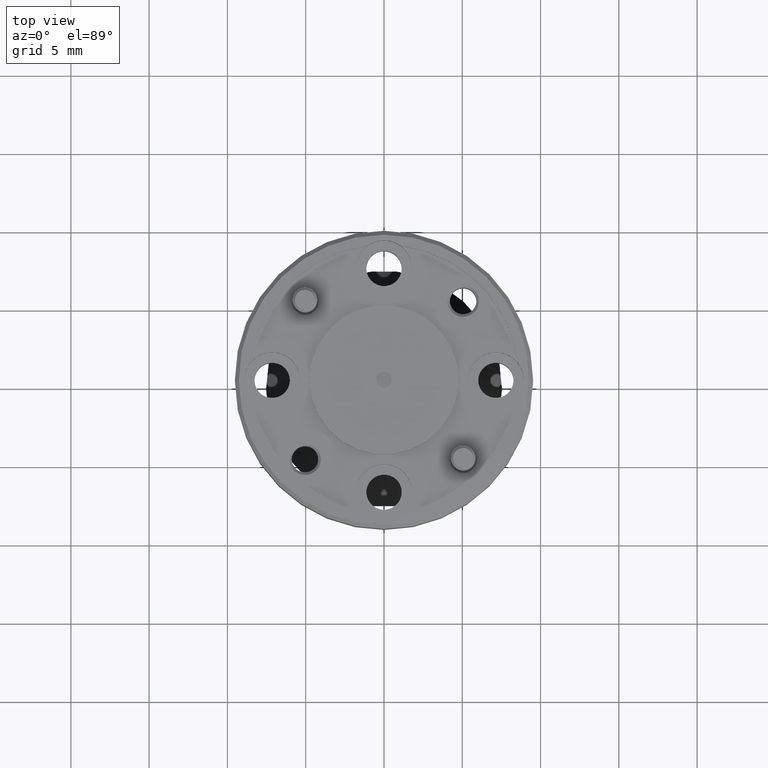
[diagram: clean part render]
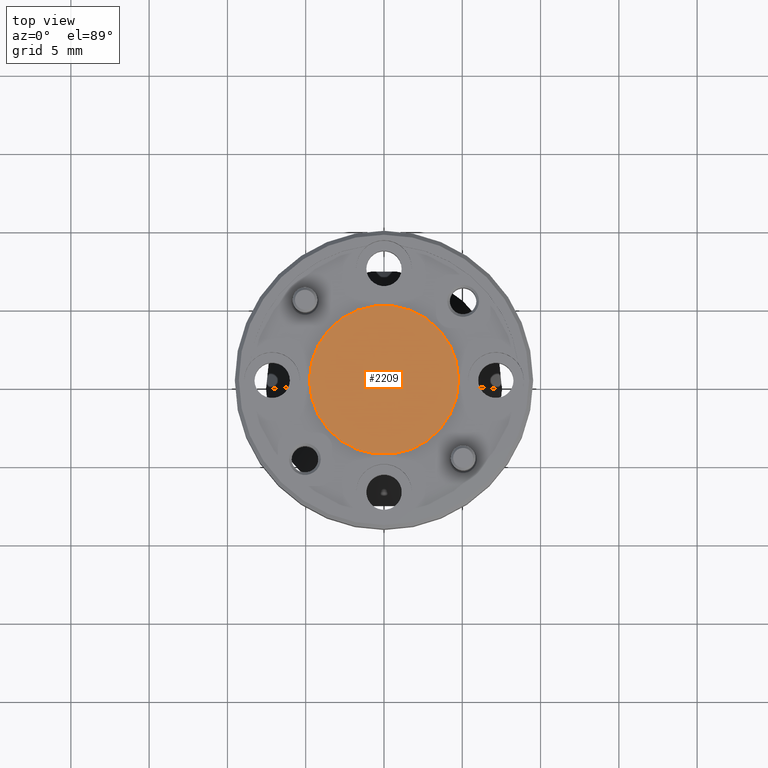
[diagram: same view with one face highlighted and labeled with its STEP entity id]
A machine part, top view. The second image highlights one B-rep face of the part: STEP entity #2209.
In plain terms, the highlighted planar face has unit normal (0, -0, 1).
Its self-contained STEP definition (entity closure, byte-faithful):
#66 = EDGE_CURVE ( 'NONE', #901, #195, #562, .T. ) ;
#71 = DIRECTION ( 'NONE',  ( 1.000000000000000000, 0.000000000000000000, 0.000000000000000000 ) ) ;
#80 = CARTESIAN_POINT ( 'NONE',  ( -0.1875000000000000278, 2.296212748401287726E-17, 0.000000000000000000 ) ) ;
#92 = DIRECTION ( 'NONE',  ( -0.000000000000000000, -0.000000000000000000, 1.000000000000000000 ) ) ;
#94 = DIRECTION ( 'NONE',  ( 0.000000000000000000, 0.000000000000000000, 1.000000000000000000 ) ) ;
#114 = CIRCLE ( 'NONE', #1445, 0.1875000000000000278 ) ;
#131 = EDGE_LOOP ( 'NONE', ( #2172, #277 ) ) ;
#195 = VERTEX_POINT ( 'NONE', #2294 ) ;
#277 = ORIENTED_EDGE ( 'NONE', *, *, #1954, .F. ) ;
#353 = DIRECTION ( 'NONE',  ( 0.000000000000000000, -0.000000000000000000, 1.000000000000000000 ) ) ;
#369 = VERTEX_POINT ( 'NONE', #2199 ) ;
#406 = EDGE_CURVE ( 'NONE', #524, #369, #1734, .T. ) ;
#433 = ORIENTED_EDGE ( 'NONE', *, *, #1660, .T. ) ;
#524 = VERTEX_POINT ( 'NONE', #80 ) ;
#548 = FACE_BOUND ( 'NONE', #131, .T. ) ;
#562 = CIRCLE ( 'NONE', #790, 0.01949999999999999997 ) ;
#579 = AXIS2_PLACEMENT_3D ( 'NONE', #769, #353, #2067 ) ;
#614 = ORIENTED_EDGE ( 'NONE', *, *, #406, .T. ) ;
#709 = AXIS2_PLACEMENT_3D ( 'NONE', #1157, #92, #1340 ) ;
#726 = PLANE ( 'NONE',  #579 ) ;
#759 = AXIS2_PLACEMENT_3D ( 'NONE', #1793, #1417, #868 ) ;
#769 = CARTESIAN_POINT ( 'NONE',  ( 0.01949999999999999997, 0.000000000000000000, 0.000000000000000000 ) ) ;
#790 = AXIS2_PLACEMENT_3D ( 'NONE', #2259, #94, #71 ) ;
#797 = CARTESIAN_POINT ( 'NONE',  ( 0.01949999999999999997, 0.000000000000000000, 0.000000000000000000 ) ) ;
#868 = DIRECTION ( 'NONE',  ( 1.000000000000000000, 0.000000000000000000, 0.000000000000000000 ) ) ;
#901 = VERTEX_POINT ( 'NONE', #797 ) ;
#1157 = CARTESIAN_POINT ( 'NONE',  ( 0.000000000000000000, 0.000000000000000000, 0.000000000000000000 ) ) ;
#1264 = CARTESIAN_POINT ( 'NONE',  ( 0.000000000000000000, 0.000000000000000000, 0.000000000000000000 ) ) ;
#1340 = DIRECTION ( 'NONE',  ( 1.000000000000000000, 0.000000000000000000, 0.000000000000000000 ) ) ;
#1417 = DIRECTION ( 'NONE',  ( 0.000000000000000000, 0.000000000000000000, 1.000000000000000000 ) ) ;
#1445 = AXIS2_PLACEMENT_3D ( 'NONE', #1264, #1834, #2217 ) ;
#1652 = EDGE_LOOP ( 'NONE', ( #433, #614 ) ) ;
#1660 = EDGE_CURVE ( 'NONE', #369, #524, #114, .T. ) ;
#1734 = CIRCLE ( 'NONE', #709, 0.1875000000000000278 ) ;
#1776 = CIRCLE ( 'NONE', #759, 0.01949999999999999997 ) ;
#1793 = CARTESIAN_POINT ( 'NONE',  ( 0.000000000000000000, 0.000000000000000000, 0.000000000000000000 ) ) ;
#1834 = DIRECTION ( 'NONE',  ( -0.000000000000000000, -0.000000000000000000, 1.000000000000000000 ) ) ;
#1954 = EDGE_CURVE ( 'NONE', #195, #901, #1776, .T. ) ;
#2067 = DIRECTION ( 'NONE',  ( 1.000000000000000000, 0.000000000000000000, 0.000000000000000000 ) ) ;
#2172 = ORIENTED_EDGE ( 'NONE', *, *, #66, .F. ) ;
#2199 = CARTESIAN_POINT ( 'NONE',  ( 0.1875000000000000278, 0.000000000000000000, 0.000000000000000000 ) ) ;
#2209 = ADVANCED_FACE ( 'NONE', ( #548, #2219 ), #726, .T. ) ;
#2217 = DIRECTION ( 'NONE',  ( 1.000000000000000000, 0.000000000000000000, 0.000000000000000000 ) ) ;
#2219 = FACE_OUTER_BOUND ( 'NONE', #1652, .T. ) ;
#2259 = CARTESIAN_POINT ( 'NONE',  ( 0.000000000000000000, 0.000000000000000000, 0.000000000000000000 ) ) ;
#2294 = CARTESIAN_POINT ( 'NONE',  ( -0.01949999999999999997, 2.388061258337338859E-18, 0.000000000000000000 ) ) ;